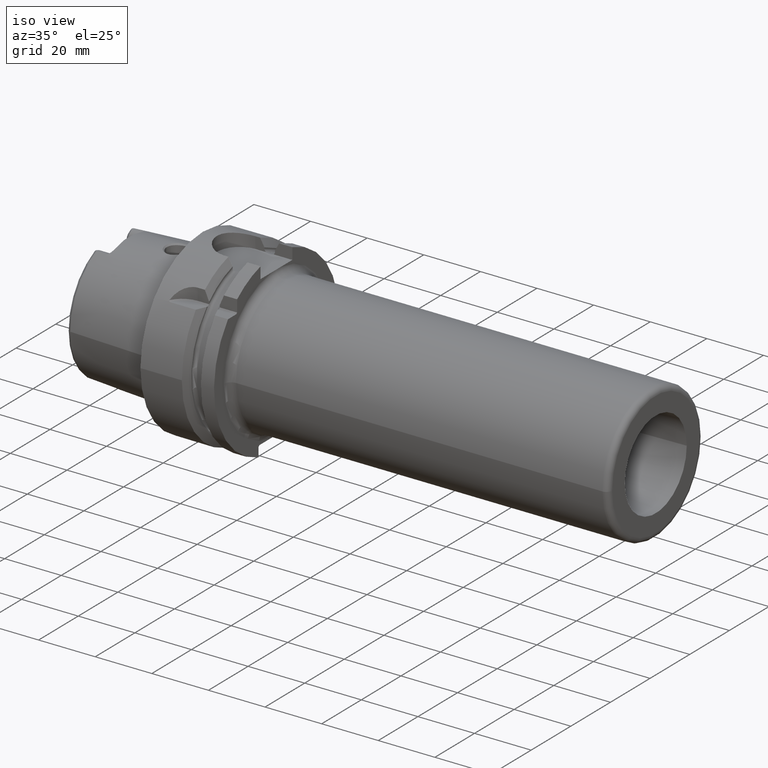
[diagram: clean part render]
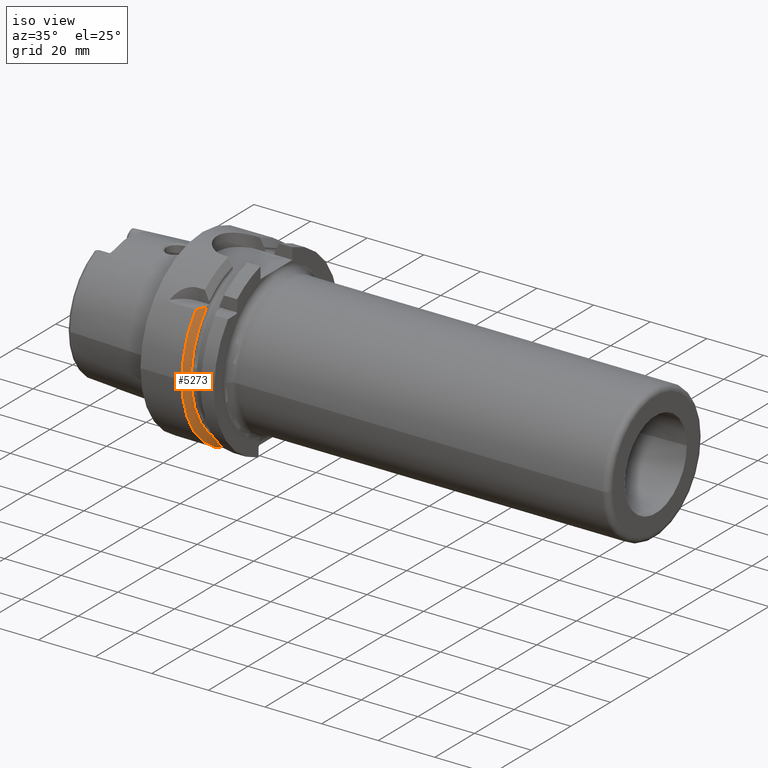
[diagram: same view with one face highlighted and labeled with its STEP entity id]
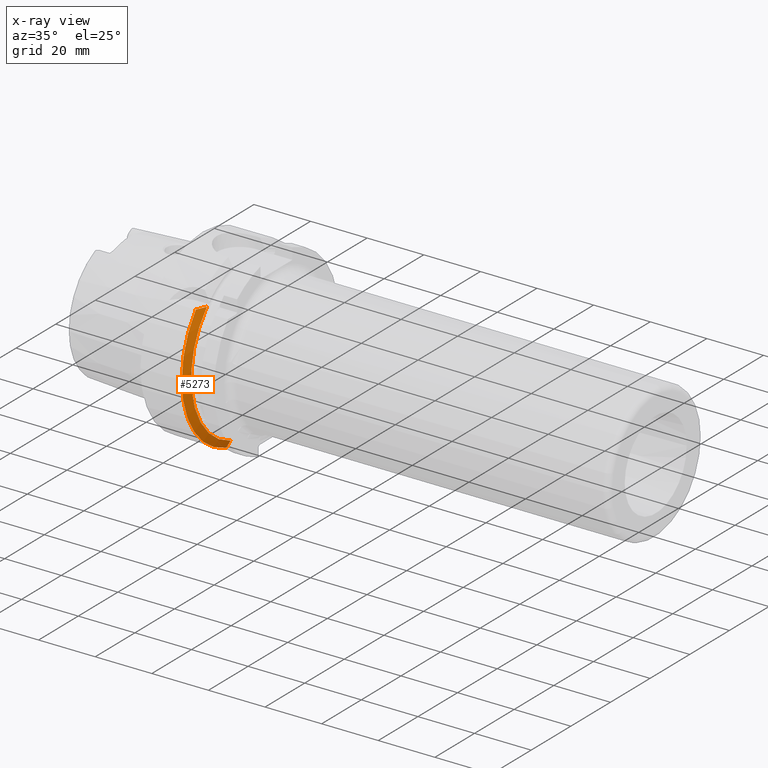
[diagram: x-ray of the same camera — body ghosted, the highlighted face saturated]
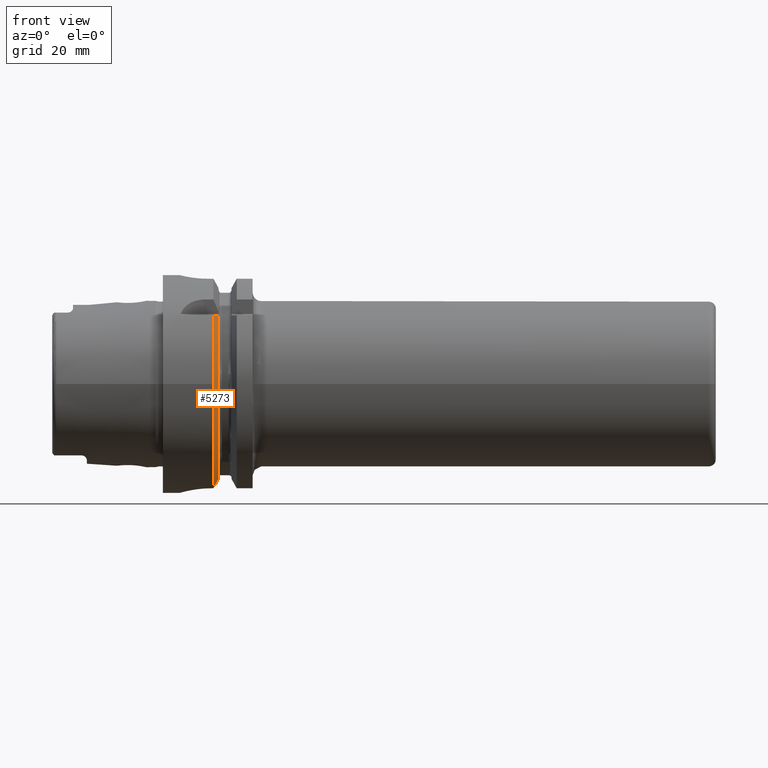
[diagram: same view with one face highlighted and labeled with its STEP entity id]
A machine part, iso view. The second image highlights one B-rep face of the part: STEP entity #5273.
The next image is the same camera in x-ray: the body ghosted, the highlighted face saturated — about 0% of this face is hidden behind the body in this view.
A second angle (front view) of the same face is appended — the face is thin or edge-on in the first view.
In plain terms, the highlighted conical surface has half-angle 60 deg.
Its self-contained STEP definition (entity closure, byte-faithful):
#1106=CARTESIAN_POINT('',(1.462250092524E1,0.E0,0.E0));
#1107=DIRECTION('',(1.E0,0.E0,0.E0));
#1108=DIRECTION('',(0.E0,-7.764663384879E-1,6.301587301587E-1));
#1109=AXIS2_PLACEMENT_3D('',#1106,#1107,#1108);
#1826=CARTESIAN_POINT('',(1.462250092524E1,0.E0,0.E0));
#1827=DIRECTION('',(1.E0,0.E0,0.E0));
#1828=DIRECTION('',(0.E0,-1.E0,0.E0));
#1829=AXIS2_PLACEMENT_3D('',#1826,#1827,#1828);
#1981=CARTESIAN_POINT('',(1.6125E1,-2.100115501712E1,1.985E1));
#1982=CARTESIAN_POINT('',(1.597384221917E1,-2.136140971936E1,1.985E1));
#1983=CARTESIAN_POINT('',(1.566115300621E1,-2.209786160622E1,1.985E1));
#1984=CARTESIAN_POINT('',(1.516255881786E1,-2.324577082409E1,1.985E1));
#1985=CARTESIAN_POINT('',(1.480632619355E1,-2.404863363206E1,1.985E1));
#1986=CARTESIAN_POINT('',(1.462250092524E1,-2.445868966237E1,1.985E1));
#1988=CARTESIAN_POINT('',(1.6125E1,0.E0,0.E0));
#1989=DIRECTION('',(1.E0,0.E0,0.E0));
#1990=DIRECTION('',(0.E0,-7.267440361428E-1,6.869083679290E-1));
#1991=AXIS2_PLACEMENT_3D('',#1988,#1989,#1990);
#1993=CARTESIAN_POINT('',(1.6125E1,-9.0175E0,-2.745461174016E1));
#1994=CARTESIAN_POINT('',(1.596600098125E1,-9.0175E0,-2.774448053791E1));
#1995=CARTESIAN_POINT('',(1.564270948849E1,-9.0175E0,-2.833297398512E1));
#1996=CARTESIAN_POINT('',(1.514210518984E1,-9.0175E0,-2.924158789478E1));
#1997=CARTESIAN_POINT('',(1.479749126019E1,-9.0175E0,-2.986536377611E1));
#1998=CARTESIAN_POINT('',(1.462250092524E1,-9.0175E0,-3.018169467989E1));
#2872=CARTESIAN_POINT('',(1.462250092524E1,-3.15E1,0.E0));
#2873=VERTEX_POINT('',#2872);
#3032=CARTESIAN_POINT('',(1.462250092524E1,-9.0175E0,-3.018169467989E1));
#3033=VERTEX_POINT('',#3032);
#3038=CARTESIAN_POINT('',(1.6125E1,-9.0175E0,-2.745461174016E1));
#3040=VERTEX_POINT('',#3038);
#3074=CARTESIAN_POINT('',(1.6125E1,-2.100115501712E1,1.985E1));
#3076=VERTEX_POINT('',#3074);
#3090=VERTEX_POINT('',#1986);
#5260=CARTESIAN_POINT('',(1.537375046262E1,0.E0,0.E0));
#5261=DIRECTION('',(-1.E0,0.E0,0.E0));
#5262=DIRECTION('',(0.E0,1.E0,0.E0));
#5263=AXIS2_PLACEMENT_3D('',#5260,#5261,#5262);
#5264=CONICAL_SURFACE('',#5263,3.019879763210E1,6.E1);
#5265=ORIENTED_EDGE('',*,*,#5199,.F.);
#5266=ORIENTED_EDGE('',*,*,#4975,.T.);
#5268=ORIENTED_EDGE('',*,*,#5267,.T.);
#5269=ORIENTED_EDGE('',*,*,#5087,.F.);
#5270=ORIENTED_EDGE('',*,*,#4406,.F.);
#5271=EDGE_LOOP('',(#5265,#5266,#5268,#5269,#5270));
#5272=FACE_OUTER_BOUND('',#5271,.F.);
#5273=ADVANCED_FACE('',(#5272),#5264,.T.);
#1110=CIRCLE('',#1109,3.15E1);
#1830=CIRCLE('',#1829,3.15E1);
#1987=B_SPLINE_CURVE_WITH_KNOTS('',3,(#1981,#1982,#1983,#1984,#1985,#1986),
.UNSPECIFIED.,.F.,.F.,(4,1,1,4),(0.E0,3.333333333333E-1,6.666666666667E-1,1.E0),
.UNSPECIFIED.);
#1992=CIRCLE('',#1991,2.889759526419E1);
#1999=B_SPLINE_CURVE_WITH_KNOTS('',3,(#1993,#1994,#1995,#1996,#1997,#1998),
.UNSPECIFIED.,.F.,.F.,(4,1,1,4),(0.E0,3.333333333333E-1,6.666666666667E-1,1.E0),
.UNSPECIFIED.);
#4406=EDGE_CURVE('',#3090,#2873,#1110,.T.);
#4975=EDGE_CURVE('',#3076,#3040,#1992,.T.);
#5087=EDGE_CURVE('',#2873,#3033,#1830,.T.);
#5199=EDGE_CURVE('',#3076,#3090,#1987,.T.);
#5267=EDGE_CURVE('',#3040,#3033,#1999,.T.);